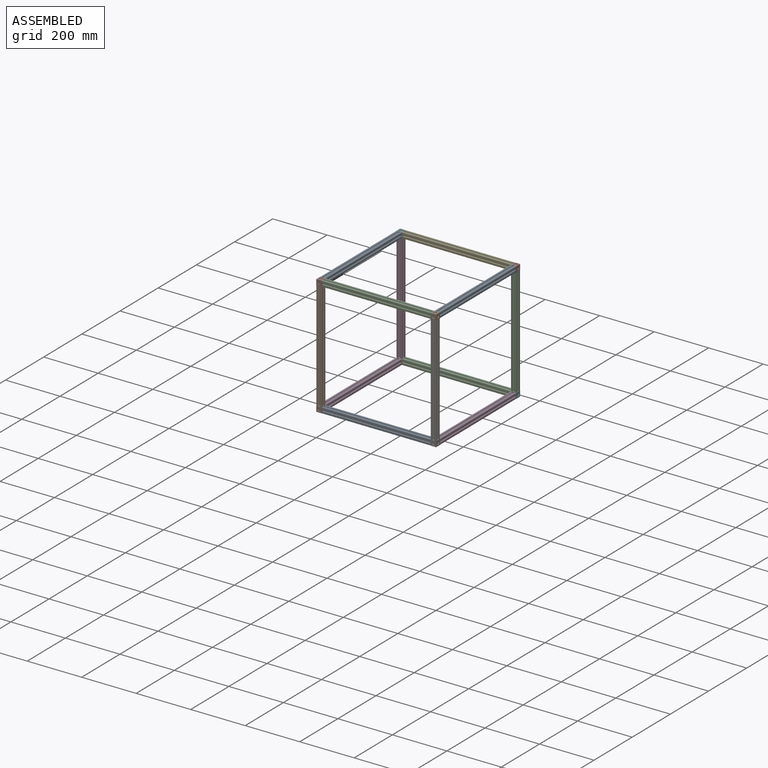
[diagram: assembled view]
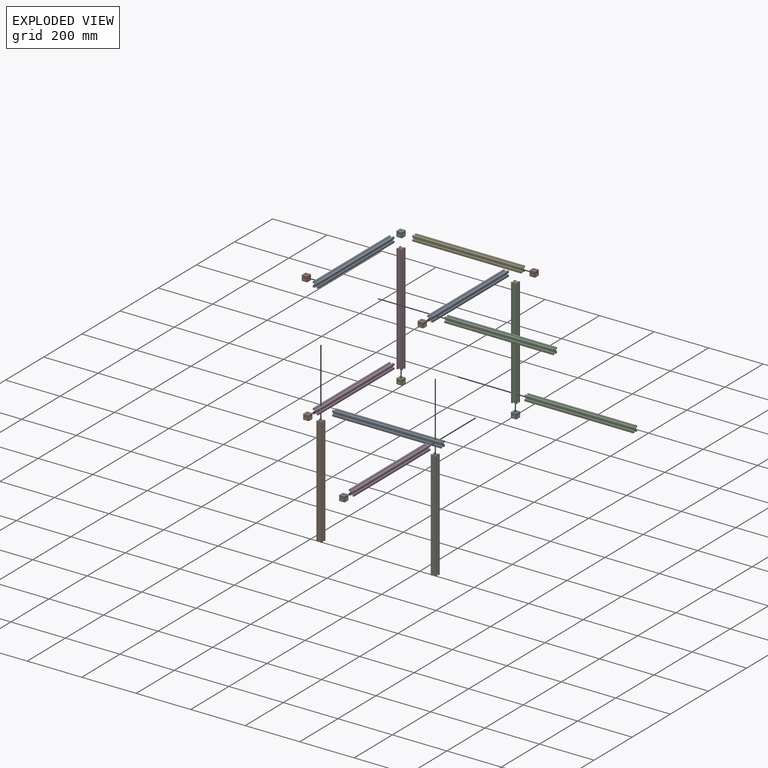
[diagram: exploded view]
GUIDED TOUR — MATED ASSEMBLY (Onshape document 0b4a7b21868917c823e87e4f, AutoMate assembly 0b4a7b21868917c823e87e4f_5f663ab8e6c5889ed649f391_ed2e1a20bdbba937468c18b5_default)

This assembly has 20 components, labeled P0..P19 below (a component is one placed occurrence of a part; the same part can appear more than once), held together by 19 mates. A mate is a constraint between two components; its type names the relative motion it leaves free:
  FASTENED — locks the two components together rigidly (no relative motion).
Axis/direction vectors are unit vectors and 'through' points are millimeter coordinates, both in the assembly's world frame.

MATES
  1. FASTENED "Fastened 2": P15 <-> P12, direction (-1.000, 0.000, 0.000) through (257.19, 206.17, 918.45) mm
  2. FASTENED "Fastened 9": P19 <-> P4, direction (0.000, 1.000, 0.000) through (-152.81, 196.17, 498.45) mm
  3. FASTENED "Fastened 5": P11 <-> P4, direction (0.000, 0.000, -1.000) through (-152.81, 206.17, 508.45) mm
  4. FASTENED "Fastened 3": P12 <-> P5, direction (-1.000, 0.000, 0.000) through (-142.81, 206.17, 918.45) mm
  5. FASTENED "Fastened 14": P6 <-> P14, direction (0.000, 0.000, -1.000) through (266.97, -213.67, 508.45) mm
  6. FASTENED "Fastened 11": P8 <-> P15, direction (0.000, 1.000, 0.000) through (267.19, 196.17, 918.45) mm
  7. FASTENED "Fastened 15": P17 <-> P8, direction (0.000, 1.000, 0.000) through (267.19, -203.83, 918.45) mm
  8. FASTENED "Fastened 6": P13 <-> P18, direction (0.000, 0.000, 1.000) through (267.19, 206.17, 508.45) mm
  9. FASTENED "Fastened 8": P3 <-> P13, direction (0.000, 1.000, 0.000) through (267.19, 196.17, 498.45) mm
  10. FASTENED "Fastened 16": P0 <-> P1, direction (-1.000, 0.000, 0.000) through (-142.81, -213.83, 498.45) mm
  11. FASTENED "Fastened 20": P9 <-> P7, direction (0.000, 0.000, 1.000) through (-152.81, -213.83, 908.45) mm
  12. FASTENED "Fastened 13": P1 <-> P19, direction (0.000, 1.000, 0.000) through (-152.81, -203.83, 498.45) mm
  13. FASTENED "Fastened 19": P7 <-> P2, direction (1.000, 0.000, 0.000) through (-142.81, -213.83, 918.45) mm
  14. FASTENED "Fastened 12": P14 <-> P3, direction (0.000, 1.000, 0.000) through (267.19, -203.83, 498.45) mm
  15. FASTENED "Fastened 1": P18 <-> P15, direction (0.000, 0.000, 1.000) through (267.19, 206.17, 908.45) mm
  16. FASTENED "Fastened 10": P16 <-> P5, direction (0.000, 1.000, 0.000) through (-152.81, 196.17, 918.45) mm
  17. FASTENED "Fastened 4": P5 <-> P11, direction (0.000, 0.000, -1.000) through (-152.81, 206.17, 908.45) mm
  18. FASTENED "Fastened 18": P2 <-> P17, direction (1.000, 0.000, 0.000) through (257.19, -213.83, 918.45) mm
  19. FASTENED "Fastened 7": P10 <-> P13, direction (1.000, 0.000, 0.000) through (257.19, 206.17, 498.45) mm

ASSEMBLY ORDER
  1. P18 — the base component [order verified]
  2. P12 [order verified]
  3. P8 [order verified]
  4. P6 [order verified]
  5. P10 [order verified]
  6. P16 [order verified]
  7. P11 [order verified]
  8. P2 [order verified]
  9. P9 [order verified]
  10. P0 [order verified]
  11. P19 [order verified]
  12. P3 [order verified]
  13. P1 [order verified]
  14. P5 [order verified]
  15. P14 [order verified]
  16. P7 [order verified]
  17. P4 [order verified]
  18. P13 [order verified]
  19. P15 [order verified]
  20. P17 [order verified]
Order-tag legend:
  [order verified] — this step's position reverses a verified removal order: the component was checked to insert without passing through the ones already placed.

Of the 20 components, 12 carry the full construction recipe — the FeatureScript program that regenerates the part's solid from scratch; the rest are supplied as boundary geometry only.
Because this assembly has more than 12 components, the tour below covers the 12 most significant ones individually (every recipe-attached component first, then the largest by part volume), in assembly order; the remaining 8 are summarized together in a grouped section at the end.
Each toured component is shown spotlighted twice — in the assembled view, then in the exploded view, where a leader line traces a displaced component back to its assembled socket (saturated green if recipe-attached, orange if geometry-only; every other component desaturated gray) — followed by its recipe or geometry summary and the mates that hold it.
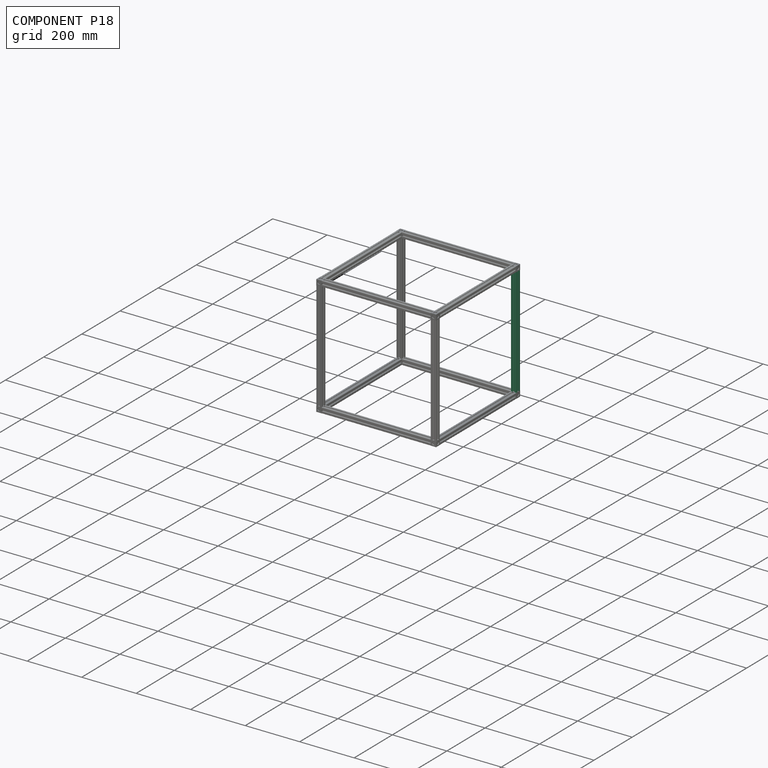
[diagram: component P18 — assembled]
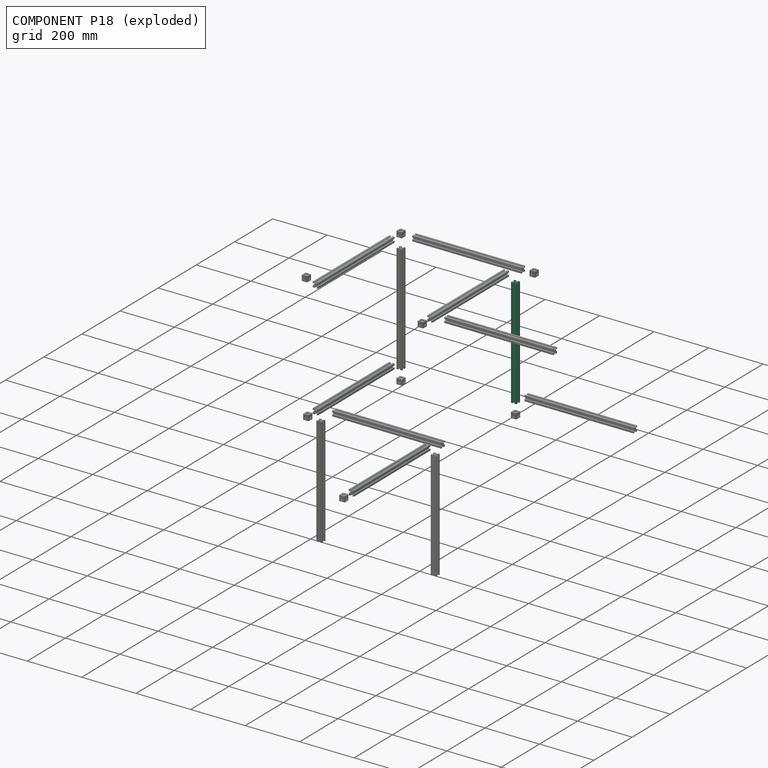
[diagram: component P18 — exploded]
COMPONENT P18 — same part as P0 (CADFS 00993378); its construction recipe is shown at P0.
Held by: FASTENED mate "Fastened 6" to P13; FASTENED mate "Fastened 1" to P15.
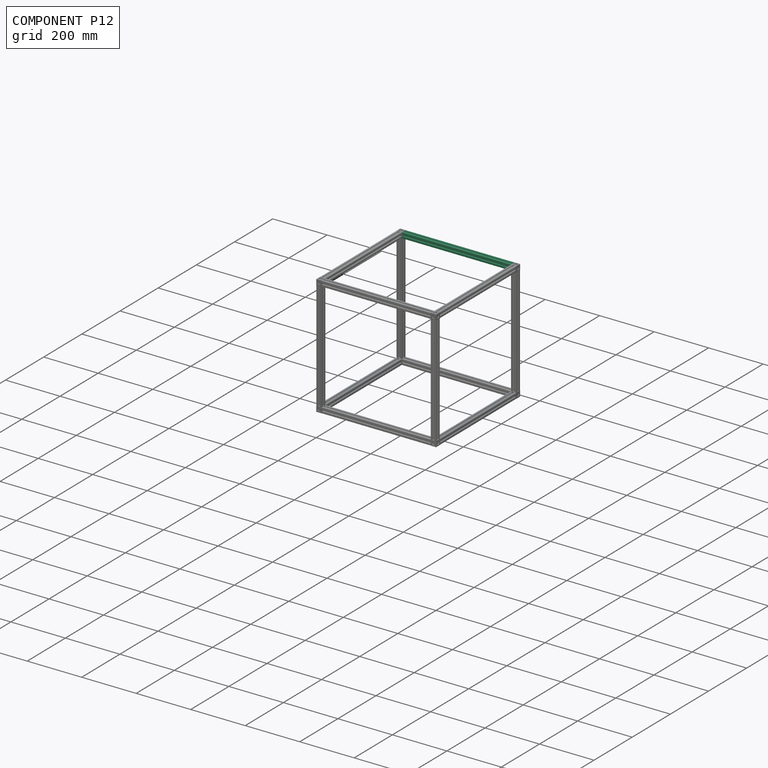
[diagram: component P12 — assembled]
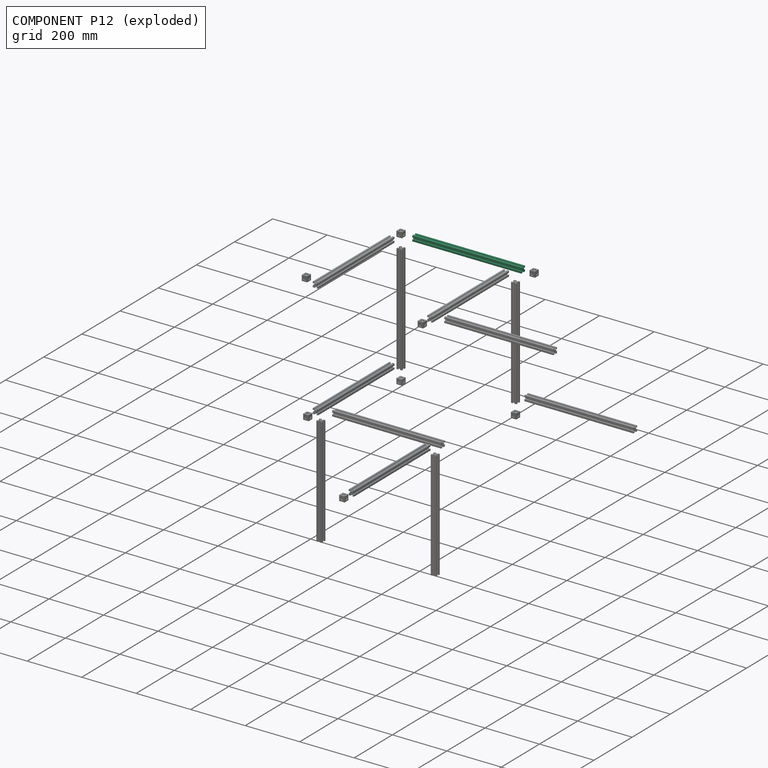
[diagram: component P12 — exploded]
COMPONENT P12 — same part as P0 (CADFS 00993378); its construction recipe is shown at P0.
Held by: FASTENED mate "Fastened 2" to P15; FASTENED mate "Fastened 3" to P5.
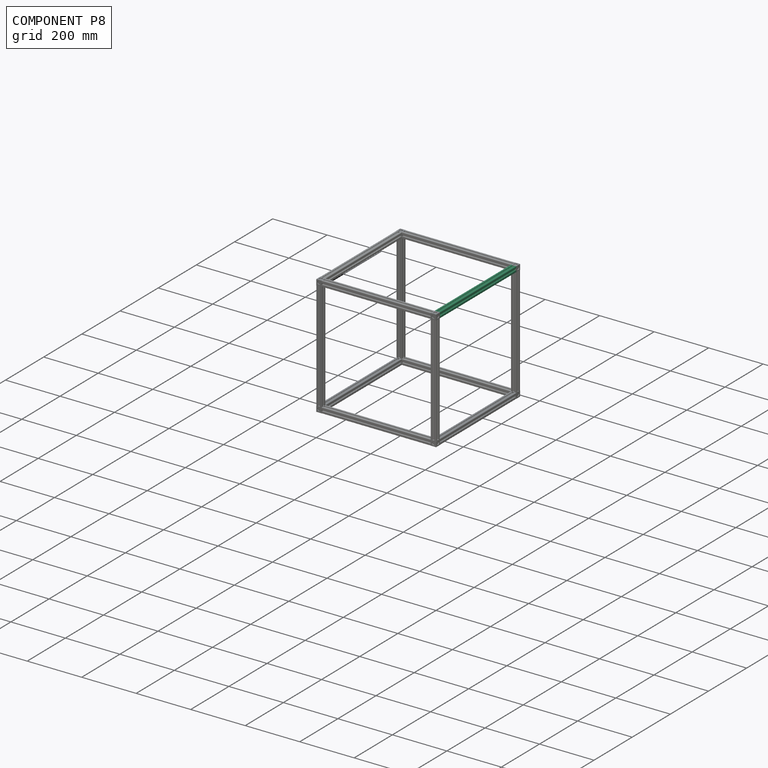
[diagram: component P8 — assembled]
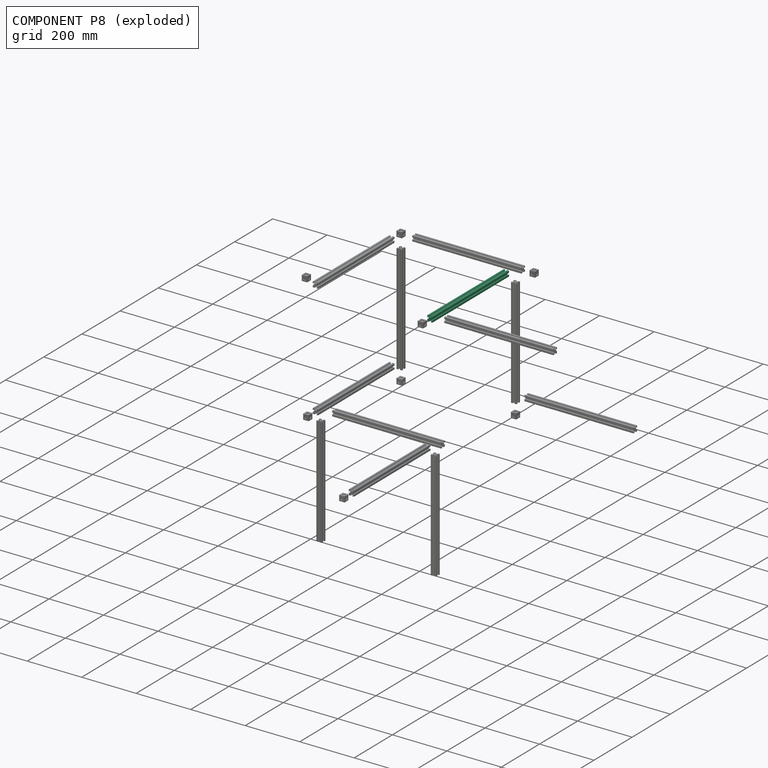
[diagram: component P8 — exploded]
COMPONENT P8 — same part as P0 (CADFS 00993378); its construction recipe is shown at P0.
Held by: FASTENED mate "Fastened 11" to P15; FASTENED mate "Fastened 15" to P17.
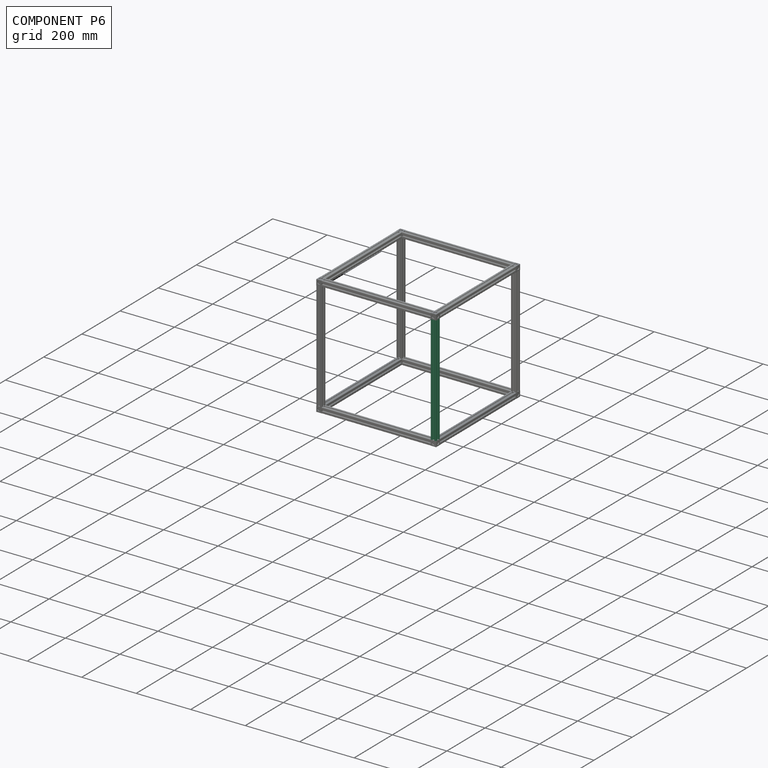
[diagram: component P6 — assembled]
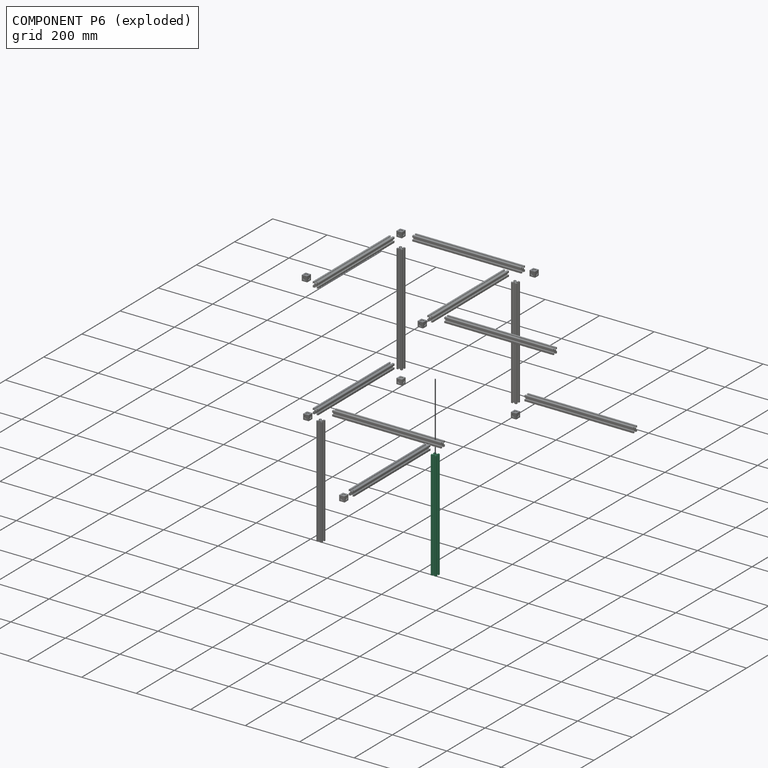
[diagram: component P6 — exploded]
COMPONENT P6 — same part as P0 (CADFS 00993378); its construction recipe is shown at P0.
Held by: FASTENED mate "Fastened 14" to P14.
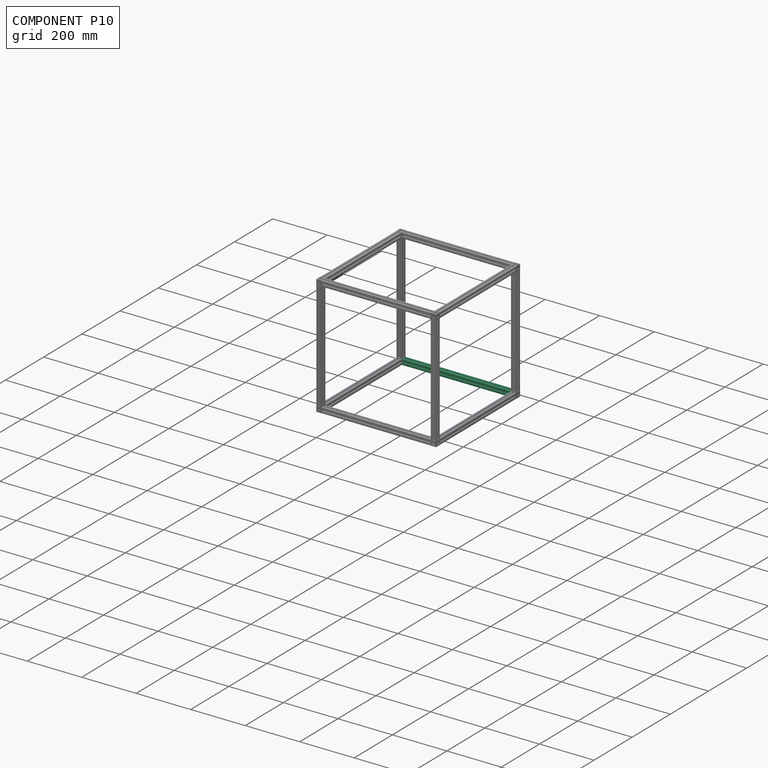
[diagram: component P10 — assembled]
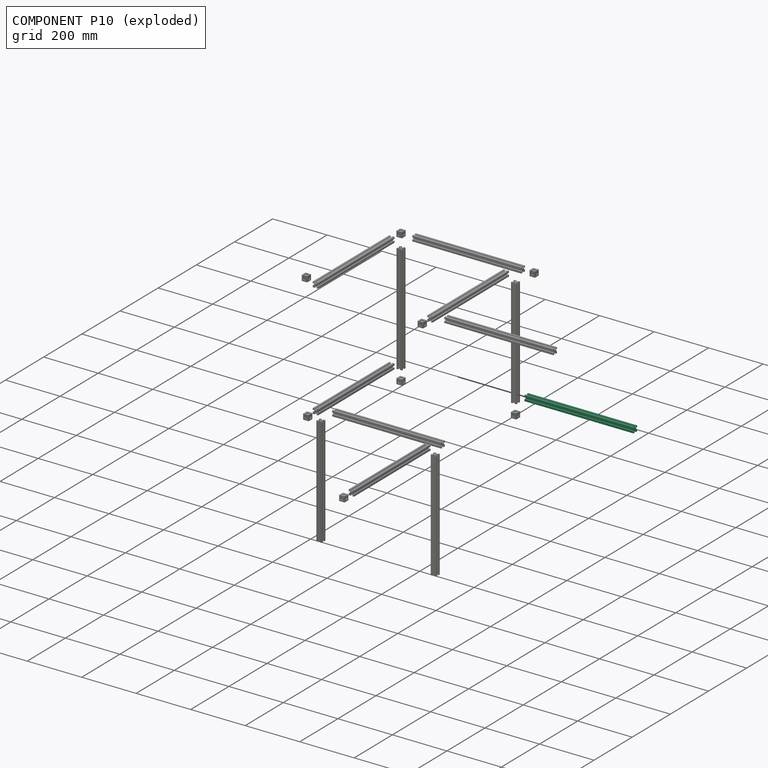
[diagram: component P10 — exploded]
COMPONENT P10 — same part as P0 (CADFS 00993378); its construction recipe is shown at P0.
Held by: FASTENED mate "Fastened 7" to P13.
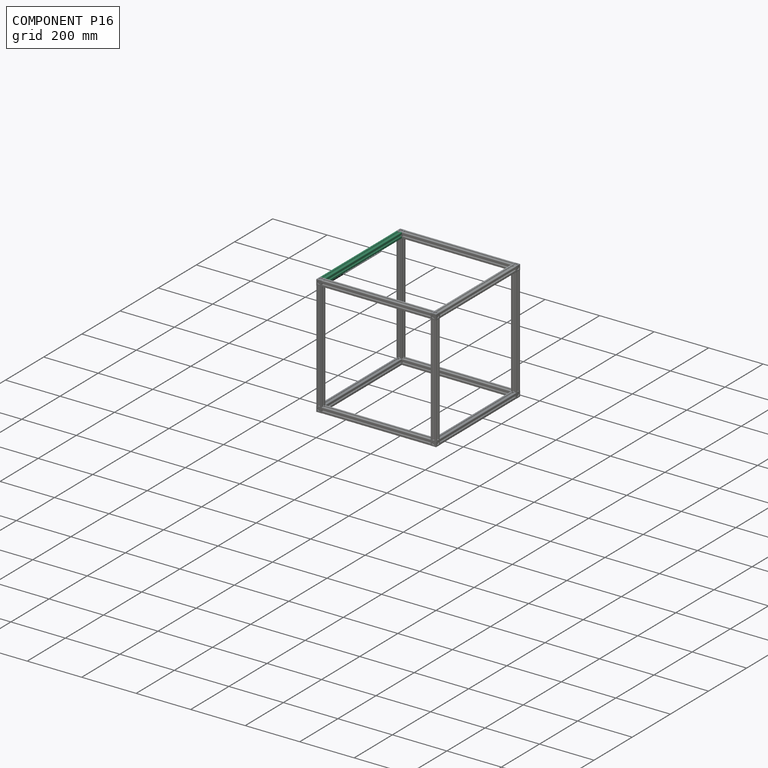
[diagram: component P16 — assembled]
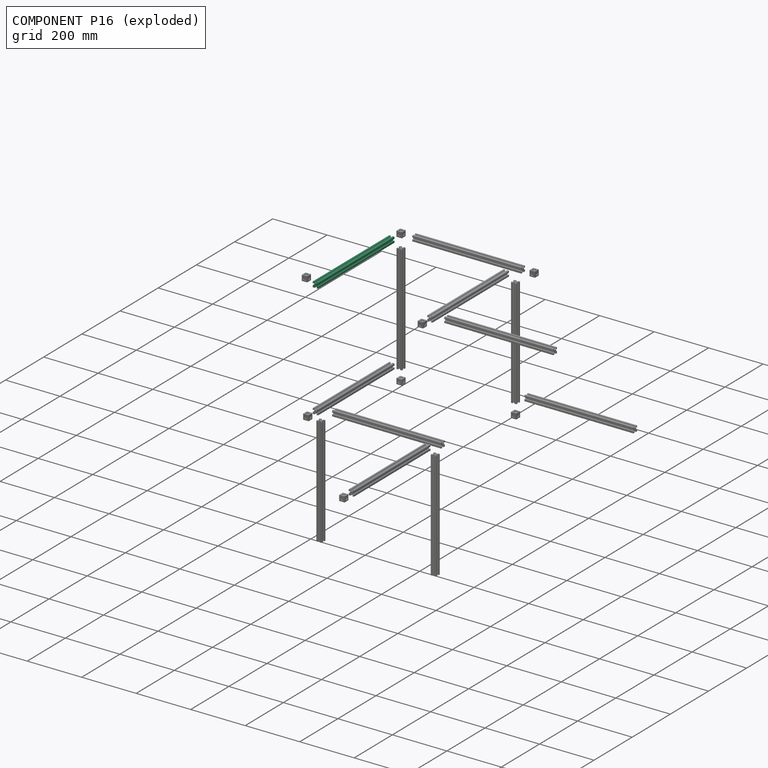
[diagram: component P16 — exploded]
COMPONENT P16 — same part as P0 (CADFS 00993378); its construction recipe is shown at P0.
Held by: FASTENED mate "Fastened 10" to P5.
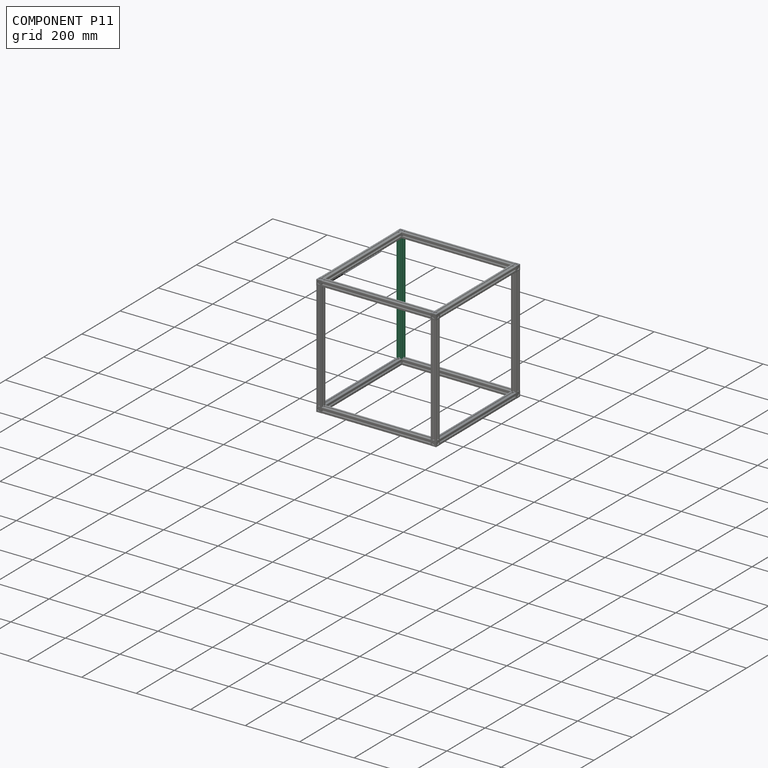
[diagram: component P11 — assembled]
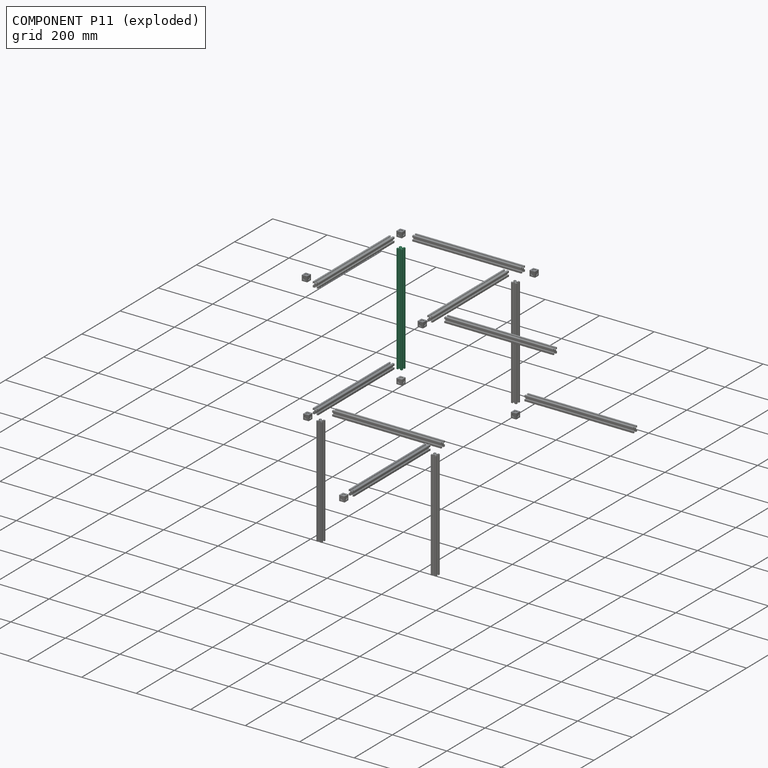
[diagram: component P11 — exploded]
COMPONENT P11 — same part as P0 (CADFS 00993378); its construction recipe is shown at P0.
Held by: FASTENED mate "Fastened 5" to P4; FASTENED mate "Fastened 4" to P5.
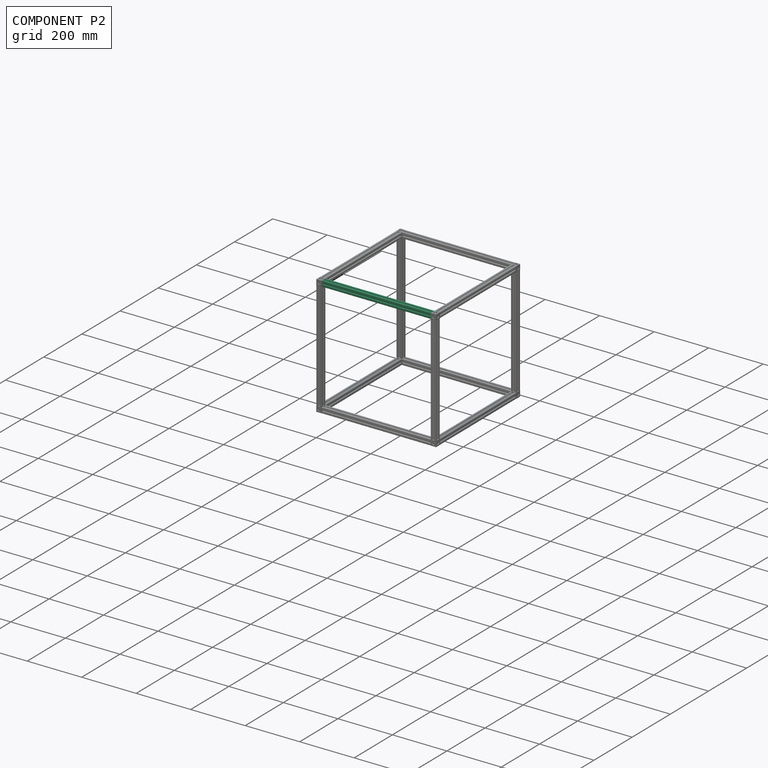
[diagram: component P2 — assembled]
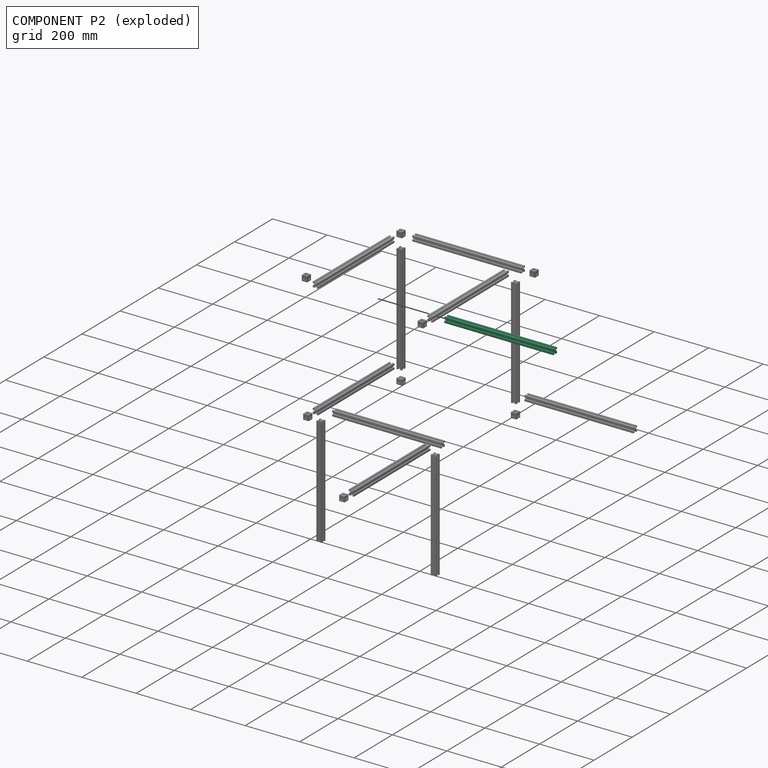
[diagram: component P2 — exploded]
COMPONENT P2 — same part as P0 (CADFS 00993378); its construction recipe is shown at P0.
Held by: FASTENED mate "Fastened 19" to P7; FASTENED mate "Fastened 18" to P17.
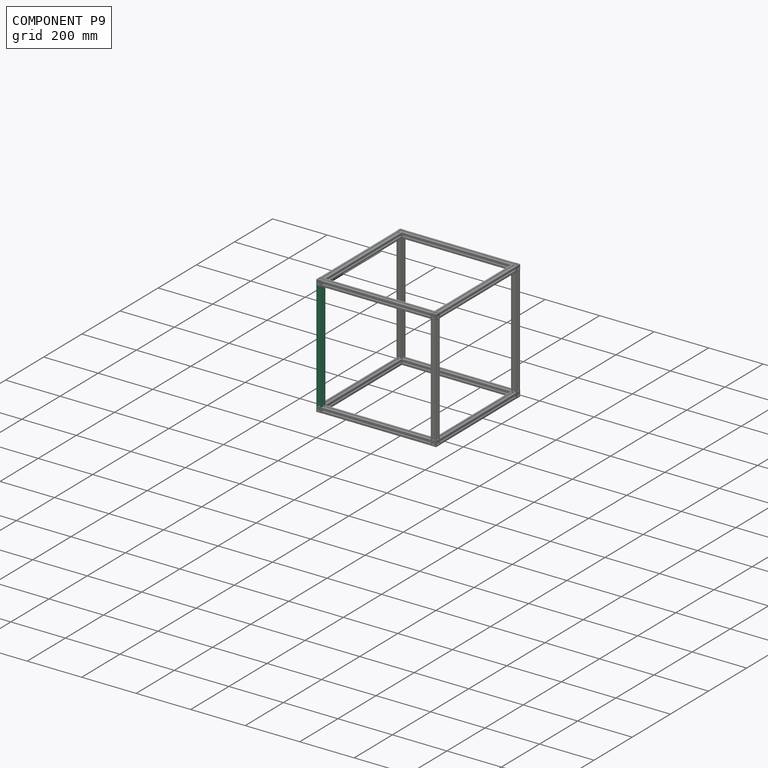
[diagram: component P9 — assembled]
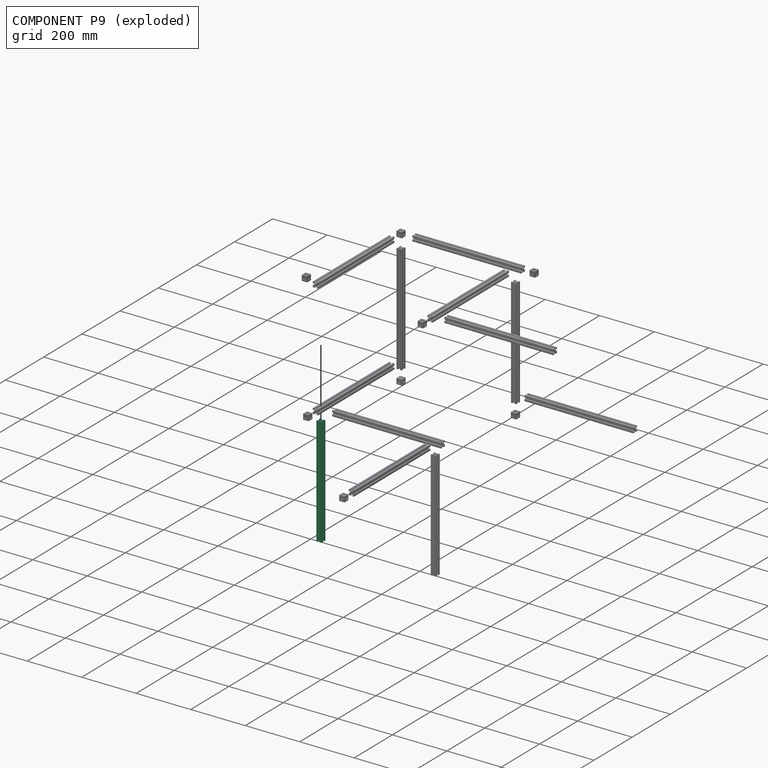
[diagram: component P9 — exploded]
COMPONENT P9 — same part as P0 (CADFS 00993378); its construction recipe is shown at P0.
Held by: FASTENED mate "Fastened 20" to P7.
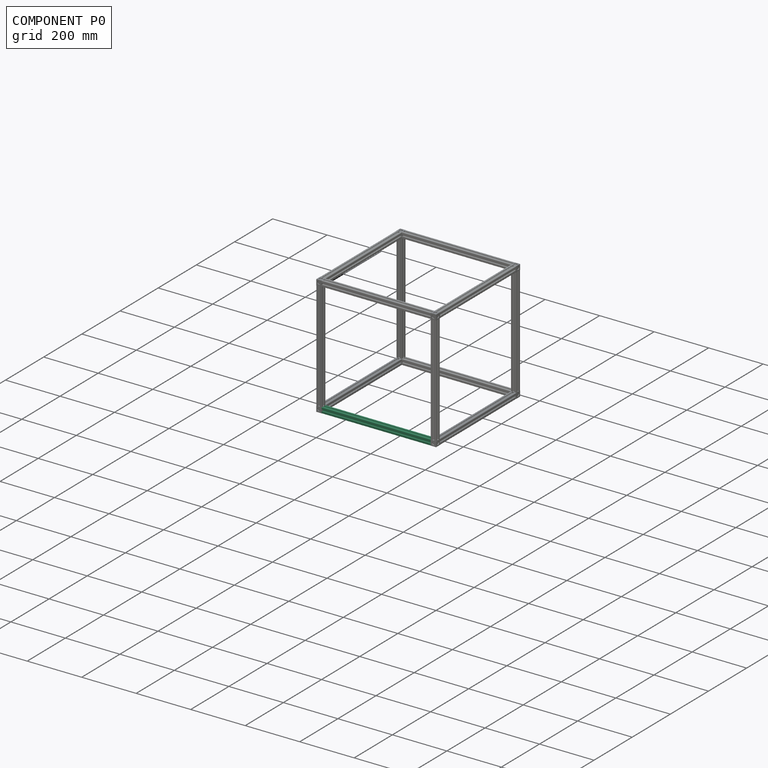
[diagram: component P0 — assembled]
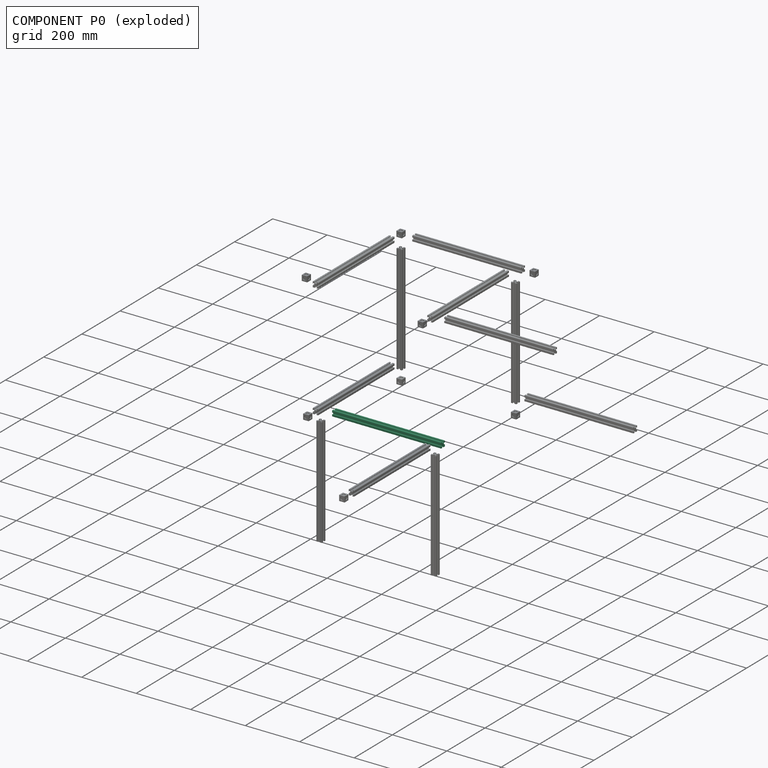
[diagram: component P0 — exploded]
COMPONENT P0 — recipe-attached (CADFS 00993378, mesh-verified: the recipe's output STEP matches this component's geometry to below the mesh-comparison resolution (tessellation chordal tolerance ~0.601 mm)).
Held by: FASTENED mate "Fastened 16" to P1.
Construction recipe (FeatureScript — the CAD program that rebuilds this solid; sketch coordinates are in the units given by the * unit suffixes, e.g. mm):

FeatureScript 1511;
import(path : "onshape/std/geometry.fs", version : "1511.0");
import(path : "onshape/std/common.fs", version : "1511.0");
const mm = millimeter;
const VERTEX = EntityType.VERTEX;
const EDGE = EntityType.EDGE;
const FACE = EntityType.FACE;
const BODY = EntityType.BODY;
function v(x, y){return vector(x, y);}
function OD(order){return orderDisambiguation(order);}
function OSD(set){return originalSetDisambiguation(set);}
function TD(topology){return topologyDisambiguation(topology);}
function TDD(query){return trueDependencyDisambiguation(query);}
function sQuery(a, b, c) {return sketchEntityQuery(a, b, c);}

annotation { "Feature Type Name" : "Feature", "Feature Type Description" : "" }
export const myFeature = defineFeature(function(context is Context, id is Id, definition is map)
    precondition{}
    {
        {
            var Q0;
            Q0=qCreatedBy(makeId("Top.planeOp"),FACE);
            var sketch = newSketch(context, id + "F0", { "sketchPlane" : qUnion([Q0])});
            skLineSegment(sketch, "E0.1", {"start": v(5.65, 6.9) * mm, "end": v(5.65, 13.1) * mm});
            skLineSegment(sketch, "E0.2", {"start": v(6.9, 5.65) * mm, "end": v(13.1, 5.65) * mm});
            skLineSegment(sketch, "E0.3", {"start": v(14.35, 6.9) * mm, "end": v(14.35, 13.1) * mm});
            skLineSegment(sketch, "E1", {"start": v(1, 20) * mm, "end": v(6.9, 20) * mm});
            skLineSegment(sketch, "E2", {"start": v(6.9, 20) * mm, "end": v(6.9, 18.7) * mm});
            skLineSegment(sketch, "E3", {"start": v(6.9, 18.7) * mm, "end": v(4.9, 18.7) * mm});
            skLineSegment(sketch, "E4", {"start": v(6.9, 14.35) * mm, "end": v(4.9, 16.35) * mm});
            skLineSegment(sketch, "E5", {"start": v(4.9, 18.7) * mm, "end": v(4.9, 16.35) * mm});
            skLineSegment(sketch, "E6.MirrorCS", {"start": v(0, 13.1) * mm, "end": v(1.3, 13.1) * mm});
            skLineSegment(sketch, "E7.MirrorCS", {"start": v(1.3, 13.1) * mm, "end": v(1.3, 15.1) * mm});
            skLineSegment(sketch, "E8.MirrorCS", {"start": v(1.3, 15.1) * mm, "end": v(3.65, 15.1) * mm});
            skLineSegment(sketch, "E9.MirrorCS", {"start": v(5.65, 13.1) * mm, "end": v(3.65, 15.1) * mm});
            skLineSegment(sketch, "E10", {"start": v(0, 19) * mm, "end": v(0, 13.1) * mm});
            skLineSegment(sketch, "E11.MirrorCS", {"start": v(13.1, 14.35) * mm, "end": v(15.1, 16.35) * mm});
            skLineSegment(sketch, "E12.MirrorCS", {"start": v(13.1, 18.7) * mm, "end": v(15.1, 18.7) * mm});
            skLineSegment(sketch, "E13.MirrorCS", {"start": v(13.1, 20) * mm, "end": v(13.1, 18.7) * mm});
            skLineSegment(sketch, "E14.MirrorCS", {"start": v(15.1, 18.7) * mm, "end": v(15.1, 16.35) * mm});
            skLineSegment(sketch, "E15.MirrorCS", {"start": v(14.35, 13.1) * mm, "end": v(16.35, 15.1) * mm});
            skLineSegment(sketch, "E16.MirrorCS", {"start": v(18.7, 15.1) * mm, "end": v(16.35, 15.1) * mm});
            skLineSegment(sketch, "E17.MirrorCS", {"start": v(18.7, 13.1) * mm, "end": v(18.7, 15.1) * mm});
            skLineSegment(sketch, "E18.MirrorCS", {"start": v(20, 13.1) * mm, "end": v(18.7, 13.1) * mm});
            skLineSegment(sketch, "E19.MirrorCS", {"start": v(20, 19) * mm, "end": v(20, 13.1) * mm});
            skLineSegment(sketch, "E20.MirrorCS", {"start": v(19, 20) * mm, "end": v(13.1, 20) * mm});
            skLineSegment(sketch, "E21.MirrorCS", {"start": v(0, 6.9) * mm, "end": v(1.3, 6.9) * mm});
            skLineSegment(sketch, "E22.MirrorCS", {"start": v(4.9, 1.3) * mm, "end": v(4.9, 3.65) * mm});
            skLineSegment(sketch, "E23.MirrorCS", {"start": v(1.3, 4.9) * mm, "end": v(3.65, 4.9) * mm});
            skLineSegment(sketch, "E24.MirrorCS", {"start": v(1.3, 6.9) * mm, "end": v(1.3, 4.9) * mm});
            skLineSegment(sketch, "E25.MirrorCS", {"start": v(5.65, 6.9) * mm, "end": v(3.65, 4.9) * mm});
            skLineSegment(sketch, "E26.MirrorCS", {"start": v(6.9, 5.65) * mm, "end": v(4.9, 3.65) * mm});
            skLineSegment(sketch, "E27.MirrorCS", {"start": v(6.9, 0) * mm, "end": v(6.9, 1.3) * mm});
            skLineSegment(sketch, "E28.MirrorCS", {"start": v(6.9, 1.3) * mm, "end": v(4.9, 1.3) * mm});
            skLineSegment(sketch, "E29.MirrorCS", {"start": v(18.7, 4.9) * mm, "end": v(16.35, 4.9) * mm});
            skLineSegment(sketch, "E30.MirrorCS", {"start": v(20, 6.9) * mm, "end": v(18.7, 6.9) * mm});
            skLineSegment(sketch, "E31.MirrorCS", {"start": v(15.1, 1.3) * mm, "end": v(15.1, 3.65) * mm});
            skLineSegment(sketch, "E32.MirrorCS", {"start": v(13.1, 0) * mm, "end": v(13.1, 1.3) * mm});
            skLineSegment(sketch, "E33.MirrorCS", {"start": v(13.1, 1.3) * mm, "end": v(15.1, 1.3) * mm});
            skLineSegment(sketch, "E34.MirrorCS", {"start": v(18.7, 6.9) * mm, "end": v(18.7, 4.9) * mm});
            skLineSegment(sketch, "E35.MirrorCS", {"start": v(19, 0) * mm, "end": v(13.1, 0) * mm});
            skLineSegment(sketch, "E36.MirrorCS", {"start": v(13.1, 5.65) * mm, "end": v(15.1, 3.65) * mm});
            skLineSegment(sketch, "E37.MirrorCS", {"start": v(20, 1) * mm, "end": v(20, 6.9) * mm});
            skLineSegment(sketch, "E38.MirrorCS", {"start": v(14.35, 6.9) * mm, "end": v(16.35, 4.9) * mm});
            skLineSegment(sketch, "E39", {"start": v(6.9, 14.35) * mm, "end": v(13.1, 14.35) * mm});
            skLineSegment(sketch, "E40", {"start": v(0, 6.9) * mm, "end": v(0, 1) * mm});
            skLineSegment(sketch, "E41", {"start": v(1, 0) * mm, "end": v(6.9, 0) * mm});
            skPoint(sketch, "E42.visualSharp", {"position": v(0, 20) * mm});
            skArc(sketch, "E42.filletArc", {"start": v(1, 20) * mm, "mid": v(0.3, 19.7) * mm, "end": v(0, 19) * mm});
            skPoint(sketch, "E43.visualSharp", {"position": v(20, 20) * mm});
            skArc(sketch, "E43.filletArc", {"start": v(20, 19) * mm, "mid": v(19.7, 19.7) * mm, "end": v(19, 20) * mm});
            skPoint(sketch, "E44.visualSharp", {"position": v(20, 0) * mm});
            skArc(sketch, "E44.filletArc", {"start": v(19, 0) * mm, "mid": v(19.7, 0.3) * mm, "end": v(20, 1) * mm});
            skPoint(sketch, "E45.visualSharp", {"position": v(0, 0) * mm});
            skArc(sketch, "E45.filletArc", {"start": v(0, 1) * mm, "mid": v(0.3, 0.3) * mm, "end": v(1, 0) * mm});
            skSolve(sketch);
        }
        {
            var Q0;
            Q0 = qSketchRegion(id + "F0", true);
            extrude(context, id + "F1", {"entities" : qUnion([Q0]), "depth" : 400 * mm, "offsetDistance" : 25 * mm});
        }
    });
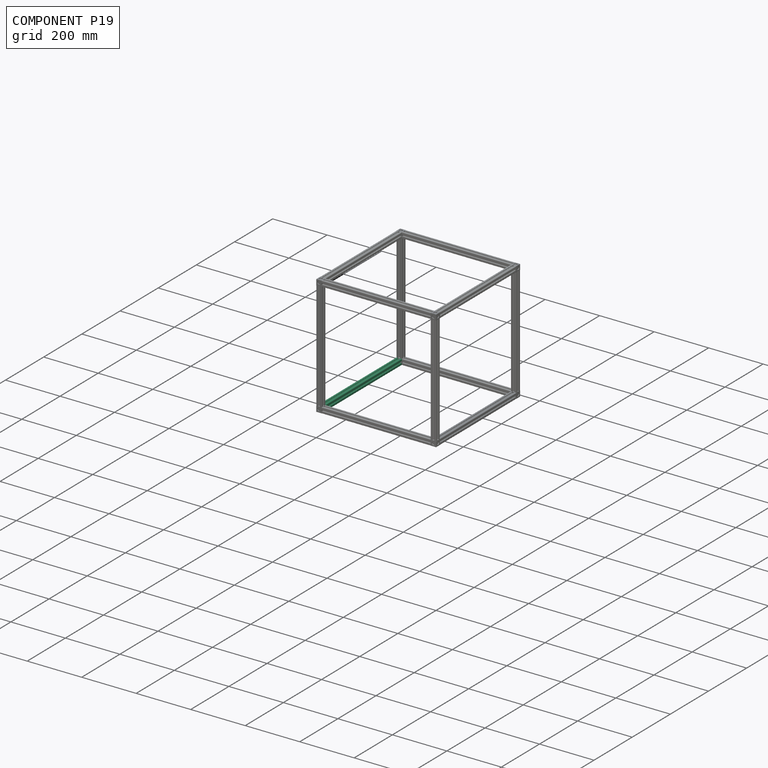
[diagram: component P19 — assembled]
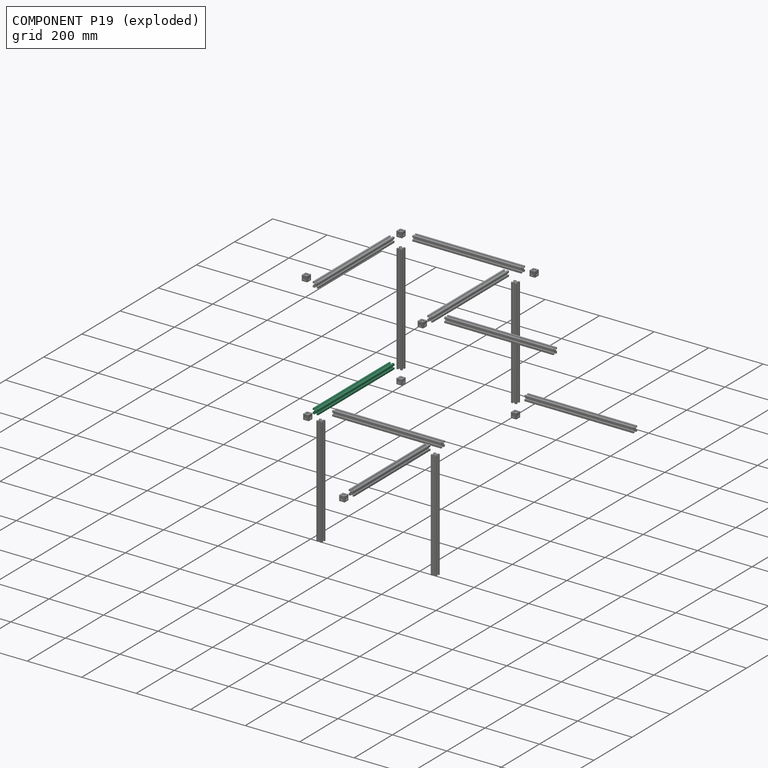
[diagram: component P19 — exploded]
COMPONENT P19 — same part as P0 (CADFS 00993378); its construction recipe is shown at P0.
Held by: FASTENED mate "Fastened 9" to P4; FASTENED mate "Fastened 13" to P1.
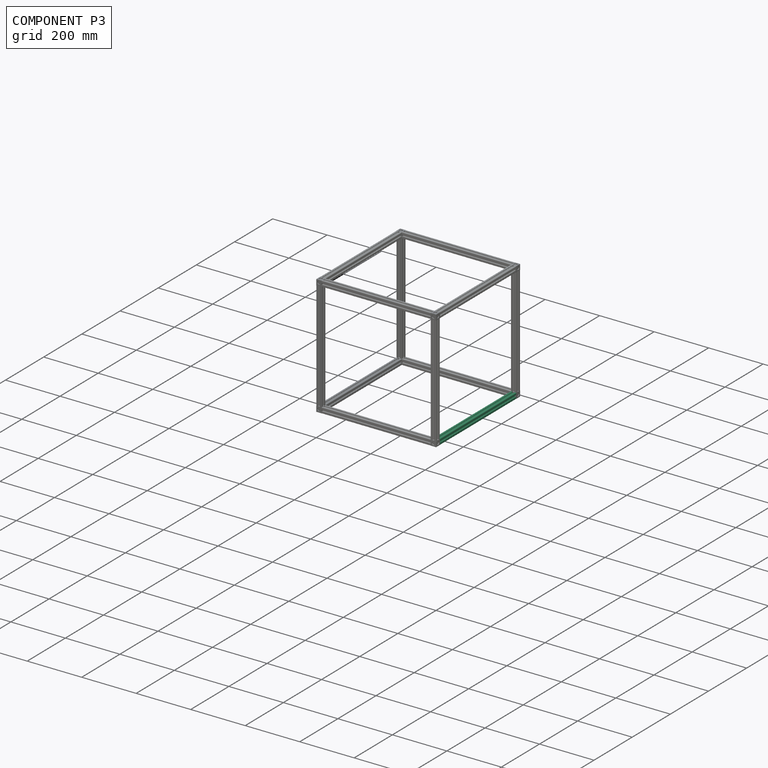
[diagram: component P3 — assembled]
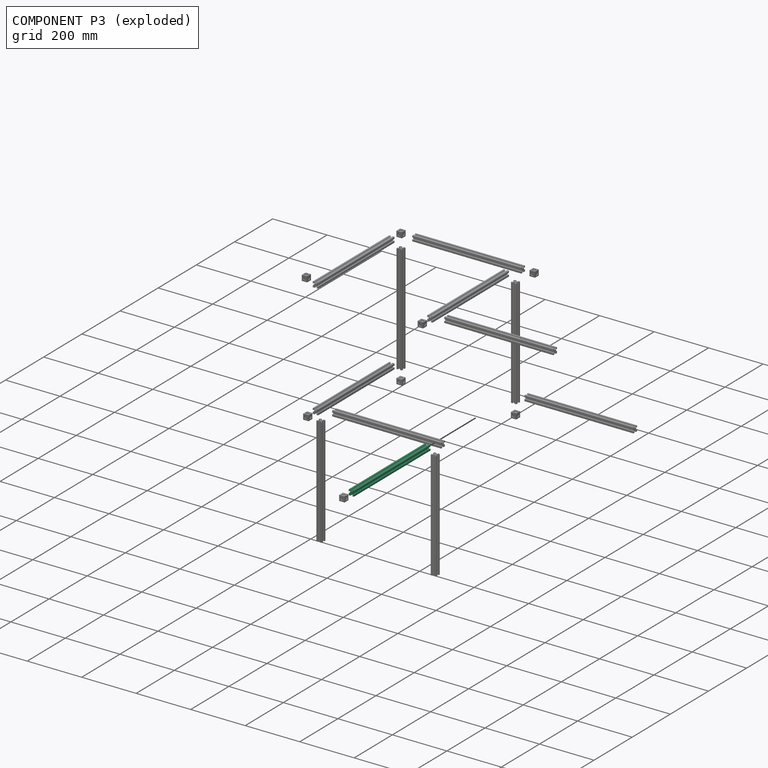
[diagram: component P3 — exploded]
COMPONENT P3 — same part as P0 (CADFS 00993378); its construction recipe is shown at P0.
Held by: FASTENED mate "Fastened 8" to P13; FASTENED mate "Fastened 12" to P14.
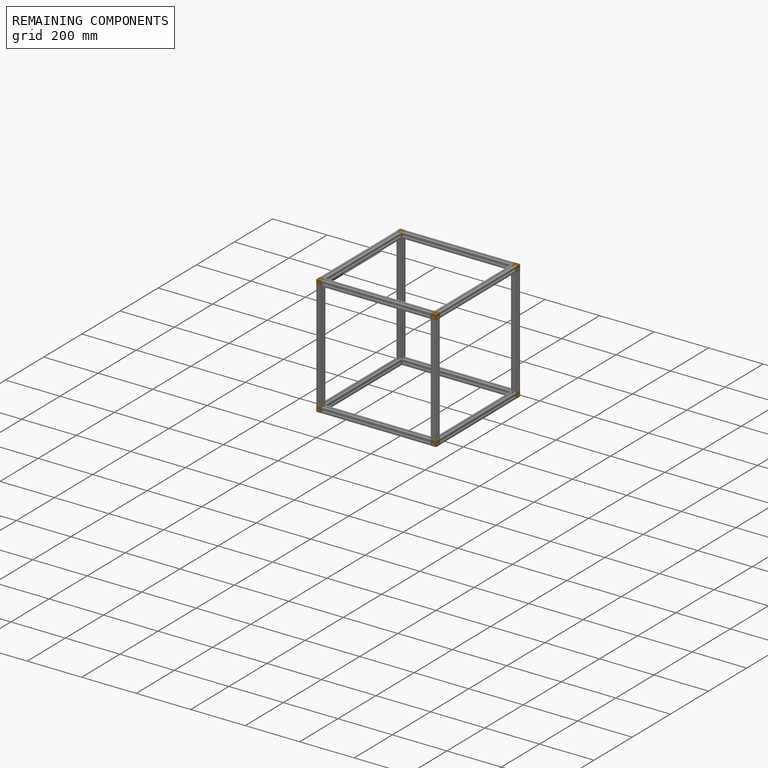
[diagram: remaining components — assembled]
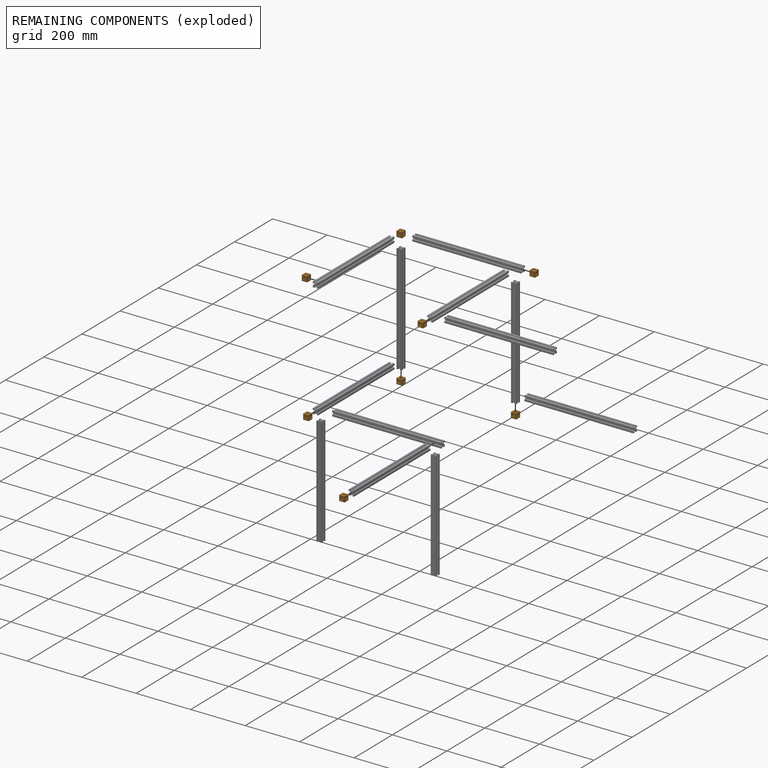
[diagram: remaining components — exploded]
REMAINING COMPONENTS (grouped) — the 8 components below fall outside the per-component tour by the significance rule stated above; both spotlight views highlight the whole group.
  P1: bounding box 20.0 x 20.0 x 20.0 mm, volume 5964 mm^3. Held by: FASTENED mate "Fastened 16" to P0; FASTENED mate "Fastened 13" to P19.
  P5: bounding box 20.0 x 20.0 x 20.0 mm, volume 5964 mm^3. Held by: FASTENED mate "Fastened 3" to P12; FASTENED mate "Fastened 10" to P16; FASTENED mate "Fastened 4" to P11.
  P14: bounding box 20.0 x 20.0 x 20.0 mm, volume 5964 mm^3. Held by: FASTENED mate "Fastened 14" to P6; FASTENED mate "Fastened 12" to P3.
  P7: bounding box 20.0 x 20.0 x 20.0 mm, volume 5964 mm^3. Held by: FASTENED mate "Fastened 20" to P9; FASTENED mate "Fastened 19" to P2.
  P4: bounding box 20.0 x 20.0 x 20.0 mm, volume 5964 mm^3. Held by: FASTENED mate "Fastened 9" to P19; FASTENED mate "Fastened 5" to P11.
  P13: bounding box 20.0 x 20.0 x 20.0 mm, volume 5964 mm^3. Held by: FASTENED mate "Fastened 6" to P18; FASTENED mate "Fastened 8" to P3; FASTENED mate "Fastened 7" to P10.
  P15: bounding box 20.0 x 20.0 x 20.0 mm, volume 5964 mm^3. Held by: FASTENED mate "Fastened 2" to P12; FASTENED mate "Fastened 11" to P8; FASTENED mate "Fastened 1" to P18.
  P17: bounding box 20.0 x 20.0 x 20.0 mm, volume 5964 mm^3. Held by: FASTENED mate "Fastened 15" to P8; FASTENED mate "Fastened 18" to P2.
PROVENANCE & LICENSES
Assembly (occurrences, transforms, mates, per-part STEP geometry): AutoMate dataset, Zenodo record 7776208, CC0.
Construction recipes: CADFS (HuggingFace VladPyatov/CADFS, CC-BY-4.0, layered over the ABC dataset), FeatureScript reconstruction programs keyed by ABC model id.
Join: ABC meta listings map ABC model id -> Onshape documentId; within a shared document, parts are matched by geometric signature (bounding-box dims + volume at 0.1% relative tolerance, exact B-rep face/solid counts).
Verification: 12 of this assembly's 20 components carry a recipe attachment, and every attachment is mesh-verified: the CADFS STEP and the AutoMate member STEP were compared as meshes in their shared local frame (symmetric sampled-point-to-mesh distance); worst across the 12 attachments: below the mesh-comparison resolution (tessellation chordal tolerance ~0.601 mm) on a 401 mm part.
Renders: orthographic iso camera (az 35 / el 25); the floor grid conveys scale (grid pitch printed in each image; no ruler). In the exploded view each component is displaced by its stored offset vector: the offsets alone carry the explosion direction (mate normal/axis signs are not orientation cues and do not encode it), and separation distances are assigned per mate-chain, not proportionally to assembly-order depth.
